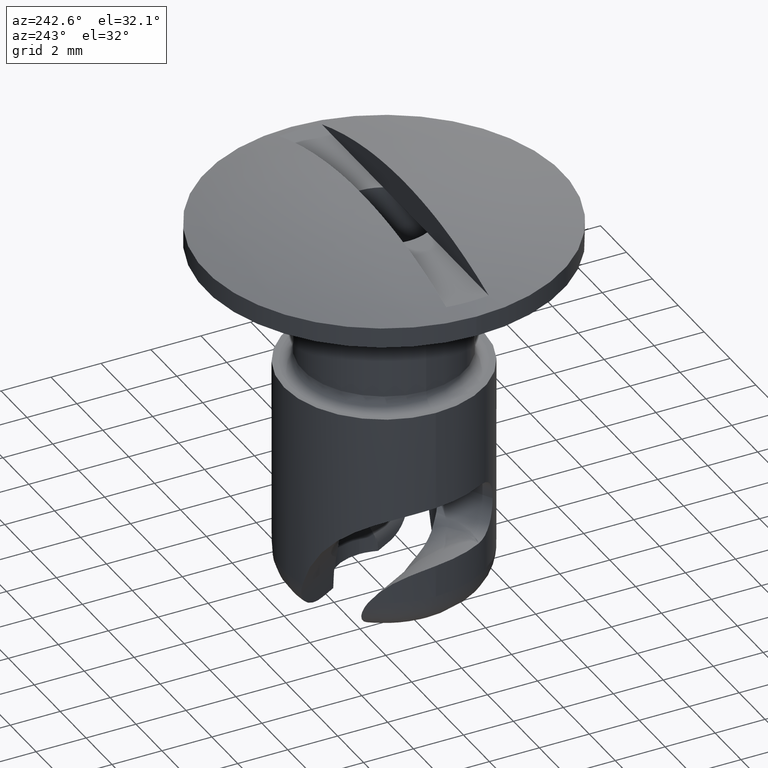
[diagram: clean part render]
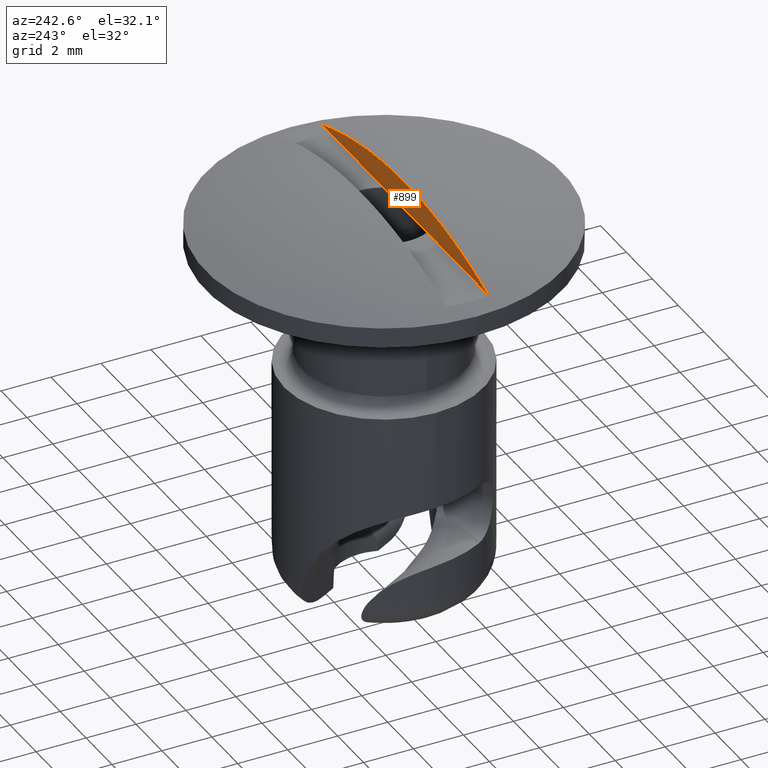
[diagram: same view with one face highlighted and labeled with its STEP entity id]
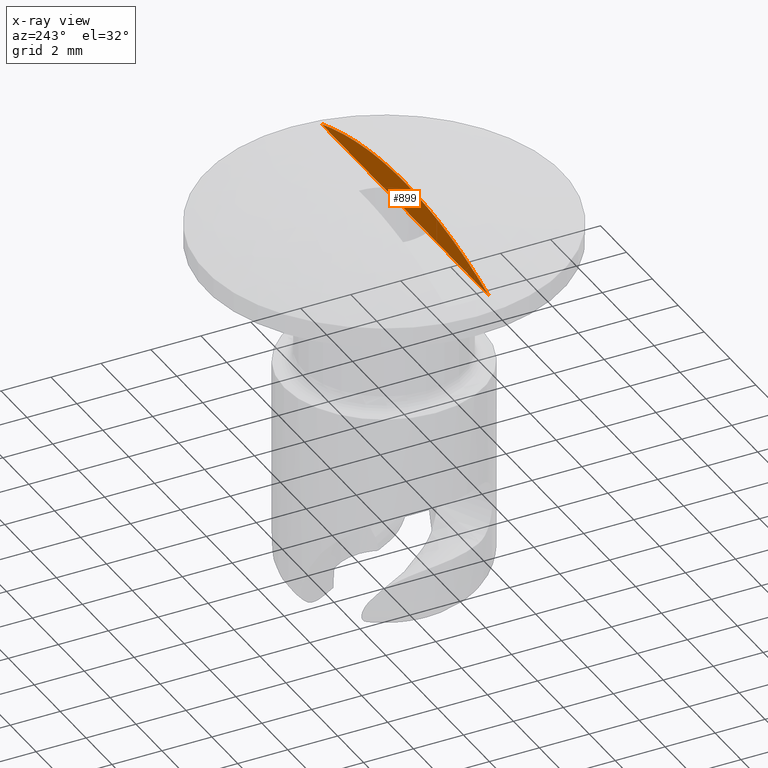
[diagram: x-ray of the same camera — body ghosted, the highlighted face saturated]
A machine part, auxiliary view. The second image highlights one B-rep face of the part: STEP entity #899.
The next image is the same camera in x-ray: the body ghosted, the highlighted face saturated — about 0% of this face is hidden behind the body in this view.
In plain terms, the highlighted planar face has unit normal (0, -1, 0).
Its self-contained STEP definition (entity closure, byte-faithful):
#42 = CARTESIAN_POINT ( 'NONE',  ( 4.351536304258065300, -0.8499999999999995300, 11.85016043457589800 ) ) ;
#49 = CARTESIAN_POINT ( 'NONE',  ( 1.087815165211636300, -0.8500000000000008700, 12.30121568767199000 ) ) ;
#91 = CARTESIAN_POINT ( 'NONE',  ( -2.199387845426258500, -0.8499999999999780000, 12.22762834914295200 ) ) ;
#126 = DIRECTION ( 'NONE',  ( 0.0000000000000000000, 0.0000000000000000000, -1.000000000000000000 ) ) ;
#140 = VERTEX_POINT ( 'NONE', #1465 ) ;
#261 = VERTEX_POINT ( 'NONE', #774 ) ;
#268 = CARTESIAN_POINT ( 'NONE',  ( -6.445786444261693200, -0.8499999999999998700, 11.19406900172935000 ) ) ;
#293 = CARTESIAN_POINT ( 'NONE',  ( -5.401501512201690500, -0.8500000000000000900, 11.54604153403503200 ) ) ;
#354 = LINE ( 'NONE', #575, #676 ) ;
#361 = VERTEX_POINT ( 'NONE', #1193 ) ;
#388 = LINE ( 'NONE', #2103, #871 ) ;
#450 = EDGE_CURVE ( 'NONE', #361, #261, #354, .T. ) ;
#461 = CARTESIAN_POINT ( 'NONE',  ( 6.445786444261689700, -0.8499999999999999800, 11.19406900172935200 ) ) ;
#542 = AXIS2_PLACEMENT_3D ( 'NONE', #2191, #1603, #126 ) ;
#544 = CARTESIAN_POINT ( 'NONE',  ( -3.809110494901594800, -0.8499999999999777700, 11.94516745128650500 ) ) ;
#562 = DIRECTION ( 'NONE',  ( 1.000000000000000000, -0.0000000000000000000, -0.0000000000000000000 ) ) ;
#575 = CARTESIAN_POINT ( 'NONE',  ( -7.150000000001116800, -0.8499999999999999800, 11.19406900172935200 ) ) ;
#676 = VECTOR ( 'NONE', #562, 1000.000000000000000 ) ;
#687 = ORIENTED_EDGE ( 'NONE', *, *, #936, .F. ) ;
#763 = ORIENTED_EDGE ( 'NONE', *, *, #450, .F. ) ;
#774 = CARTESIAN_POINT ( 'NONE',  ( 1.699264546796643000, -0.8499999999999999800, 11.19406900000000100 ) ) ;
#871 = VECTOR ( 'NONE', #2115, 1000.000000000000000 ) ;
#888 = EDGE_LOOP ( 'NONE', ( #1200, #687, #1364, #763 ) ) ;
#899 = ADVANCED_FACE ( 'NONE', ( #1572 ), #2399, .F. ) ;
#936 = EDGE_CURVE ( 'NONE', #140, #2379, #1453, .T. ) ;
#1193 = CARTESIAN_POINT ( 'NONE',  ( -1.699264546796644300, -0.8499999999999999800, 11.19406900172935200 ) ) ;
#1200 = ORIENTED_EDGE ( 'NONE', *, *, #2056, .F. ) ;
#1212 = EDGE_CURVE ( 'NONE', #261, #140, #1679, .T. ) ;
#1231 = CARTESIAN_POINT ( 'NONE',  ( -7.150000000001116800, -0.8499999999999999800, 11.19406900172935200 ) ) ;
#1316 = DIRECTION ( 'NONE',  ( 1.000000000000000000, -0.0000000000000000000, -0.0000000000000000000 ) ) ;
#1331 = CARTESIAN_POINT ( 'NONE',  ( -1.112581260775427500, -0.8499999999999993100, 12.32399802229161700 ) ) ;
#1364 = ORIENTED_EDGE ( 'NONE', *, *, #1212, .F. ) ;
#1453 = B_SPLINE_CURVE_WITH_KNOTS ( 'NONE', 3,
 ( #461, #1768, #42, #1530, #2326, #49, #2538, #1331, #91, #544, #2551, #293, #2134, #268 ),
 .UNSPECIFIED., .F., .F.,
 ( 4, 2, 2, 2, 2, 2, 4 ),
 ( 6.314488766312914300E-018, 0.003286518664587449700, 0.004929777996881171100, 0.006573037329174894300, 0.009859555993762338800, 0.01150281532605606200, 0.01314607465834978300 ),
 .UNSPECIFIED. ) ;
#1465 = CARTESIAN_POINT ( 'NONE',  ( 6.445786444261689700, -0.8499999999999999800, 11.19406900172935200 ) ) ;
#1530 = CARTESIAN_POINT ( 'NONE',  ( 2.728670495609855500, -0.8499999999999996400, 12.13466712763703400 ) ) ;
#1572 = FACE_OUTER_BOUND ( 'NONE', #888, .T. ) ;
#1603 = DIRECTION ( 'NONE',  ( 0.0000000000000000000, -1.000000000000000000, -0.0000000000000000000 ) ) ;
#1679 = LINE ( 'NONE', #1231, #2192 ) ;
#1768 = CARTESIAN_POINT ( 'NONE',  ( 5.410311989398871400, -0.8499999999999999800, 11.56846019252291100 ) ) ;
#2056 = EDGE_CURVE ( 'NONE', #2379, #361, #388, .T. ) ;
#2103 = CARTESIAN_POINT ( 'NONE',  ( -7.150000000001116800, -0.8499999999999999800, 11.19406900172935200 ) ) ;
#2115 = DIRECTION ( 'NONE',  ( 1.000000000000000000, -0.0000000000000000000, -0.0000000000000000000 ) ) ;
#2134 = CARTESIAN_POINT ( 'NONE',  ( -5.928064567513653800, -0.8500000000000002000, 11.38125904685823500 ) ) ;
#2191 = CARTESIAN_POINT ( 'NONE',  ( -7.150000000001116800, -0.8499999999999999800, 12.34406900172935200 ) ) ;
#2192 = VECTOR ( 'NONE', #1316, 1000.000000000000000 ) ;
#2226 = CARTESIAN_POINT ( 'NONE',  ( -6.445786444261693200, -0.8499999999999998700, 11.19406900172935000 ) ) ;
#2326 = CARTESIAN_POINT ( 'NONE',  ( 2.181967188264089000, -0.8500000000000007500, 12.20619556156173100 ) ) ;
#2379 = VERTEX_POINT ( 'NONE', #2226 ) ;
#2399 = PLANE ( 'NONE',  #542 ) ;
#2538 = CARTESIAN_POINT ( 'NONE',  ( 0.5389526259562028600, -0.8499999999999993100, 12.32501348234358400 ) ) ;
#2551 = CARTESIAN_POINT ( 'NONE',  ( -4.342243256859173800, -0.8500000000000002000, 11.82784823588109400 ) ) ;